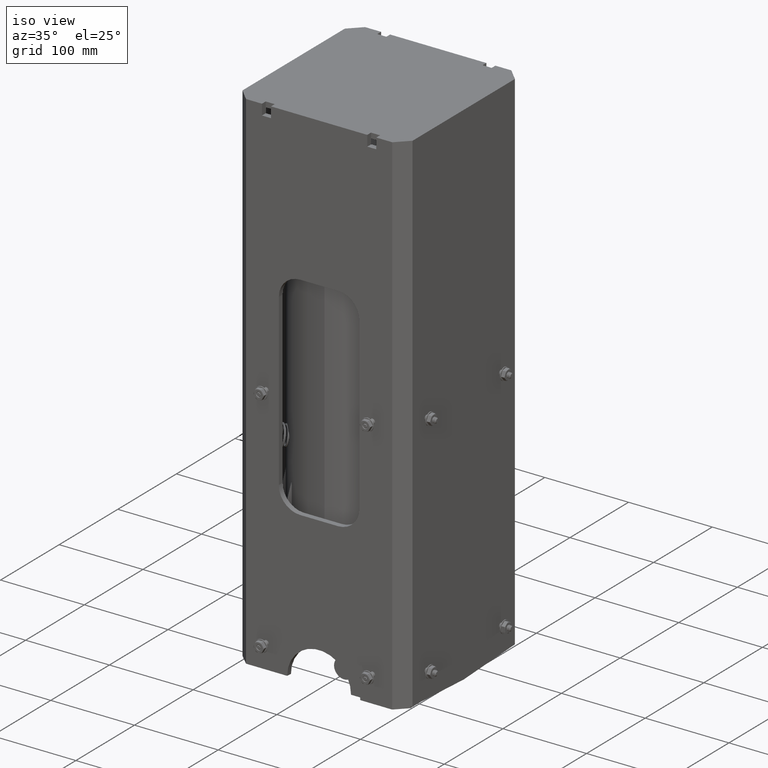
[diagram: clean part render]
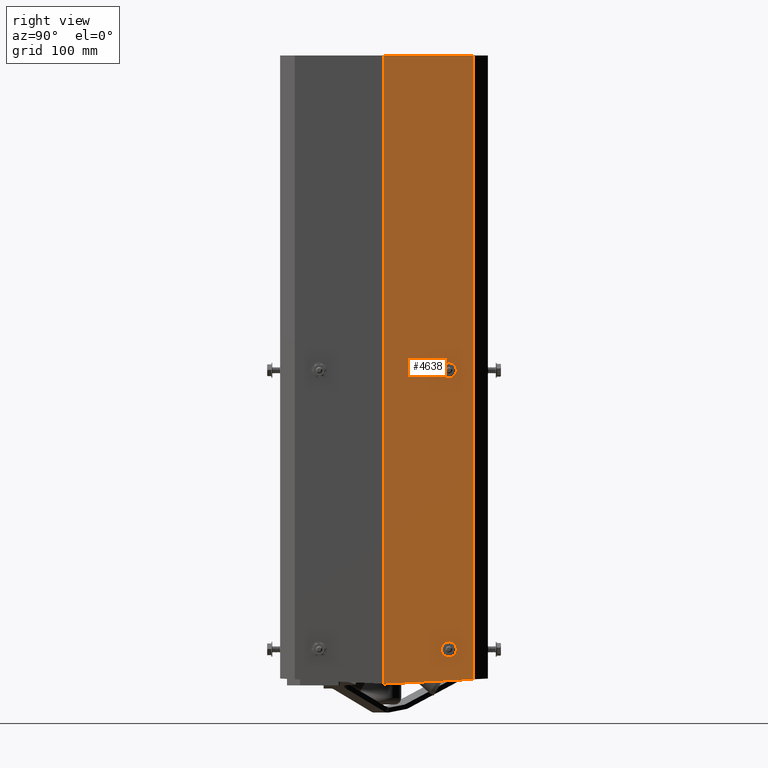
[diagram: tour spotlight — one face highlighted and labeled with its STEP entity id]
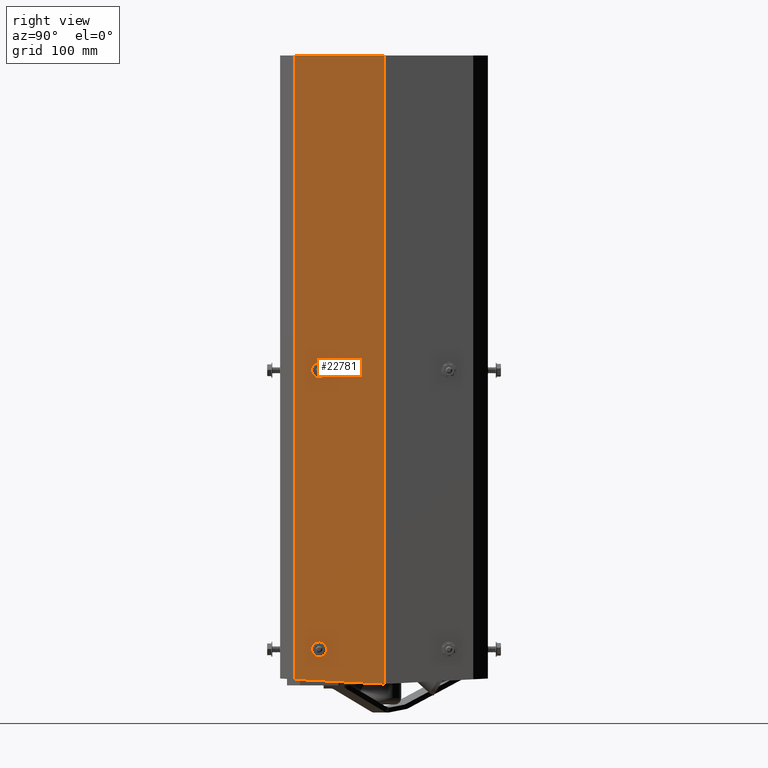
[diagram: tour spotlight — one face highlighted and labeled with its STEP entity id]
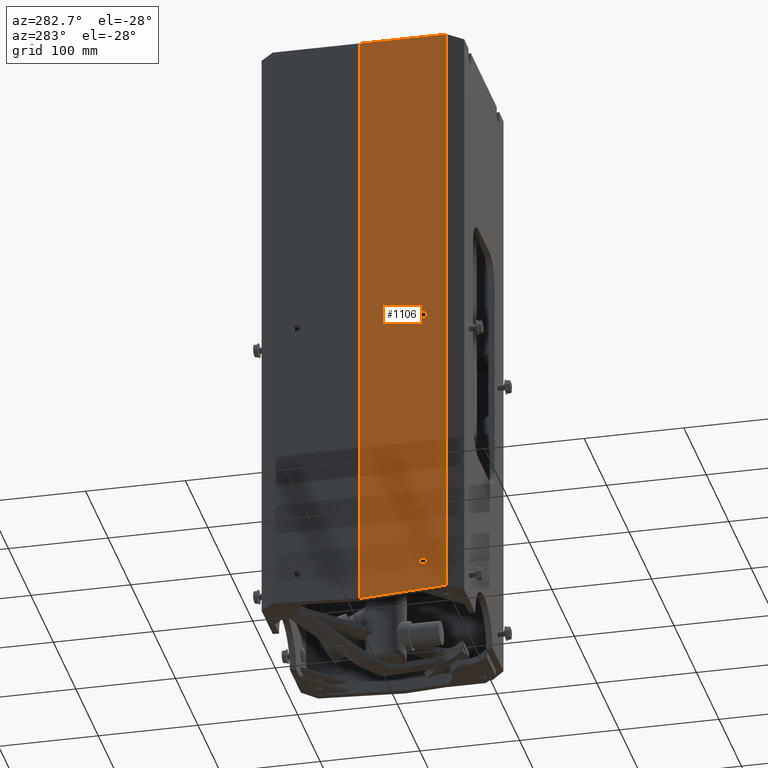
[diagram: tour spotlight — one face highlighted and labeled with its STEP entity id]
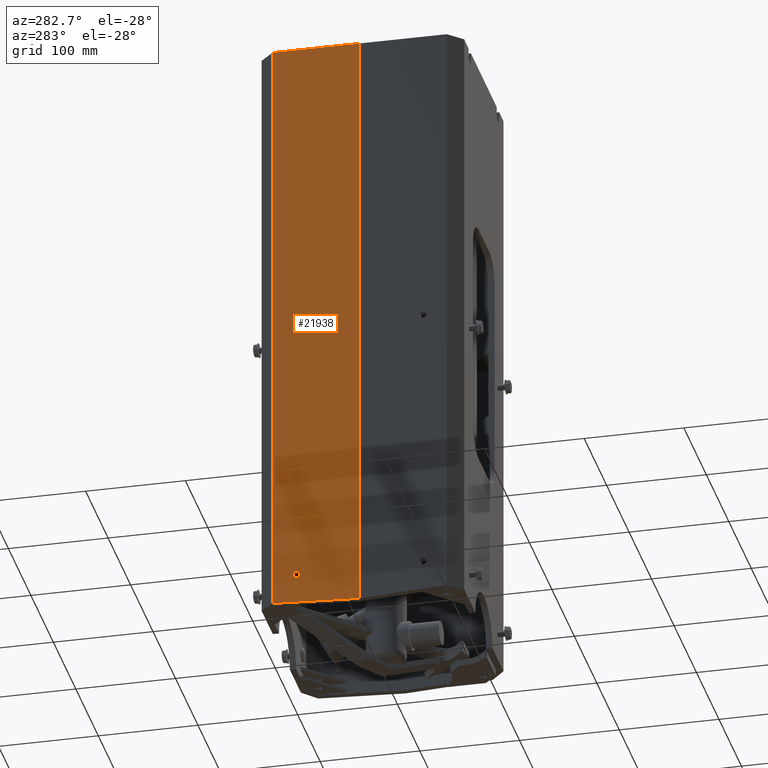
[diagram: tour spotlight — one face highlighted and labeled with its STEP entity id]
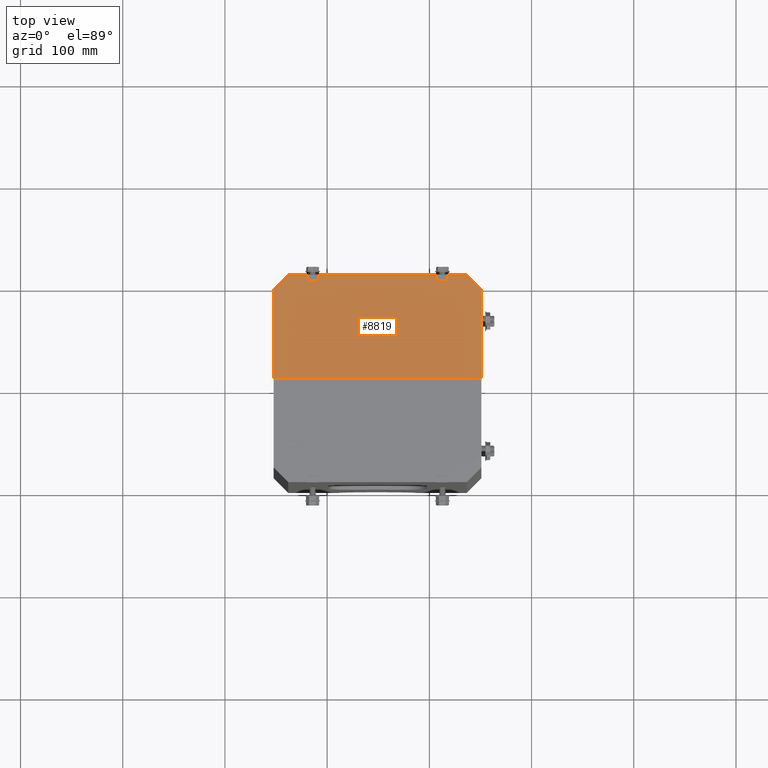
[diagram: tour spotlight — one face highlighted and labeled with its STEP entity id]
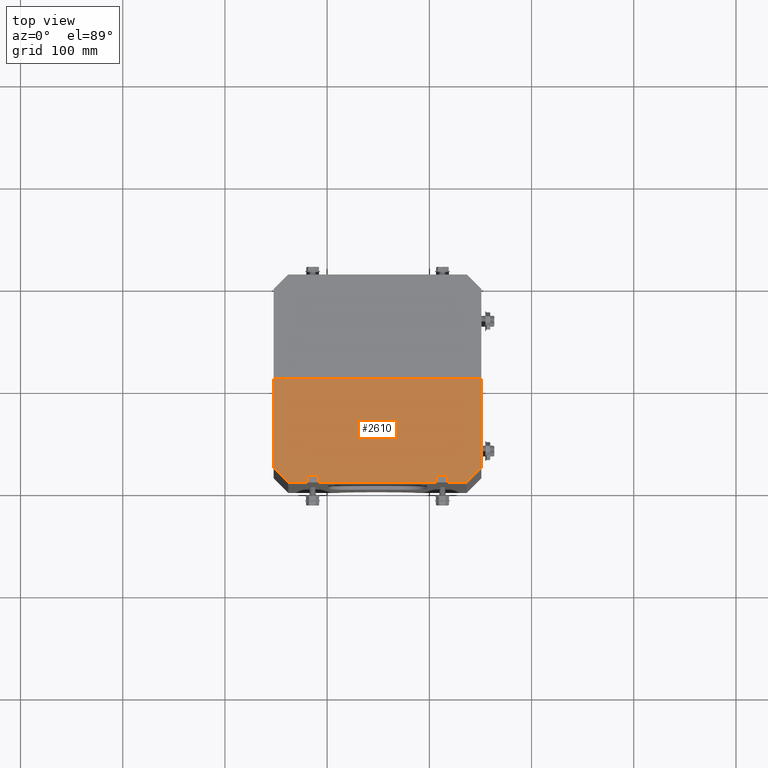
[diagram: tour spotlight — one face highlighted and labeled with its STEP entity id]
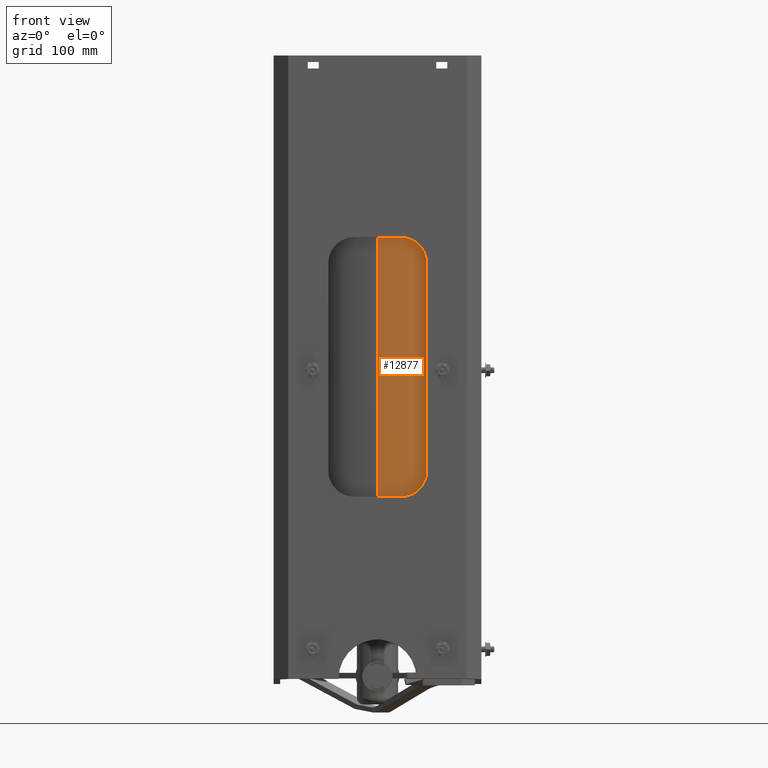
[diagram: tour spotlight — one face highlighted and labeled with its STEP entity id]
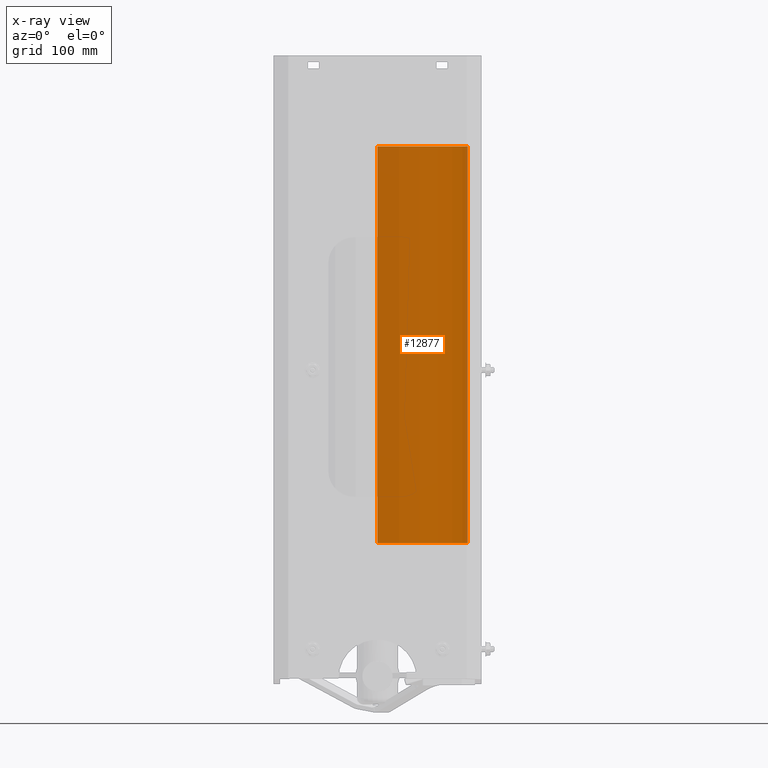
[diagram: x-ray of the same camera — body ghosted, this tour face saturated]
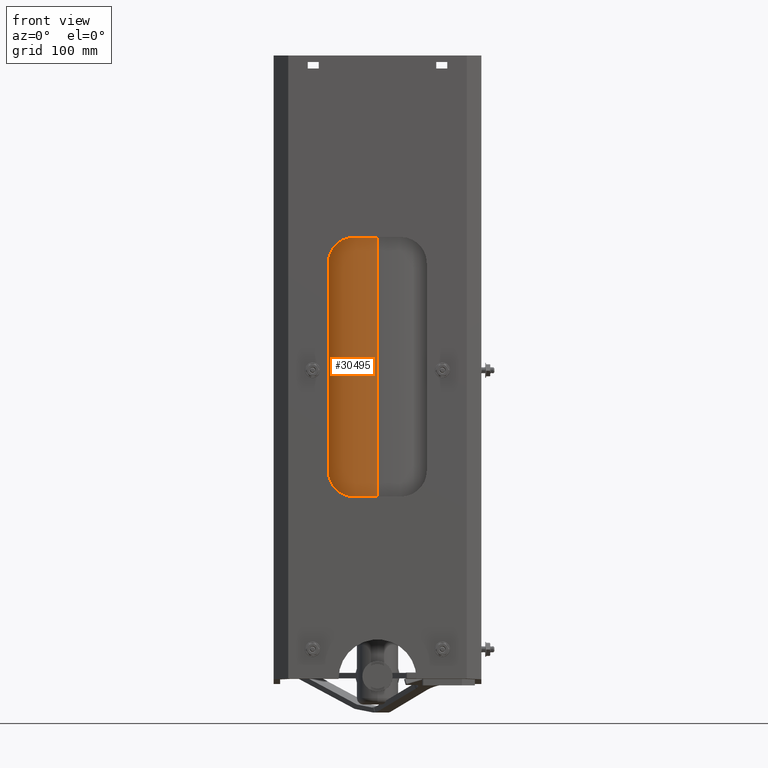
[diagram: tour spotlight — one face highlighted and labeled with its STEP entity id]
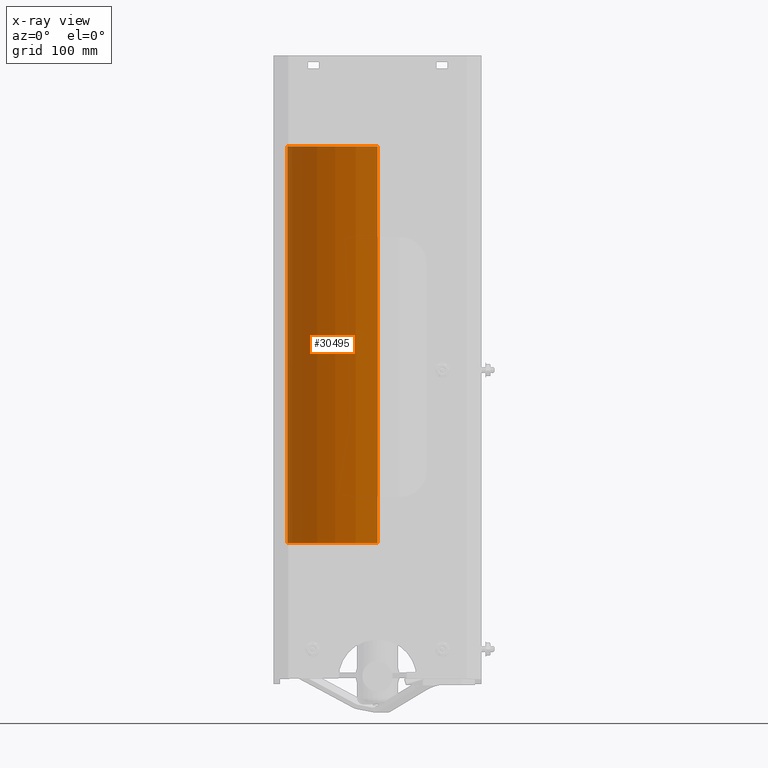
[diagram: x-ray of the same camera — body ghosted, this tour face saturated]
A machine part: a face-by-face anatomy tour. The part has 2538 B-rep faces; the first image is the clean iso view, then the 8 largest visible faces are spotlighted one at a time (largest first), each with its STEP entity span.

Face 1 — right view, entity #4638. In plain terms, the highlighted planar face has unit normal (-1, 0, 0).
Definition (entity closure, byte-faithful):
#284 = EDGE_CURVE ( 'NONE', #6771, #21971, #22871, .T. ) ;
#417 = EDGE_CURVE ( 'NONE', #16886, #15276, #11267, .T. ) ;
#509 = DIRECTION ( 'NONE',  ( 0.0000000000000000000, -1.000000000000000000, 0.0000000000000000000 ) ) ;
#2124 = FACE_BOUND ( 'NONE', #20098, .T. ) ;
#2401 = EDGE_LOOP ( 'NONE', ( #6319, #25370 ) ) ;
#2809 = CARTESIAN_POINT ( 'NONE',  ( 4.000000000000010700, 2.500000000000007100, -10.77000000000000100 ) ) ;
#3240 = VECTOR ( 'NONE', #5950, 39.37007874015748100 ) ;
#3584 = CARTESIAN_POINT ( 'NONE',  ( 4.000000000000010700, 4.000000000000010700, 12.10500000000000000 ) ) ;
#4638 = ADVANCED_FACE ( 'NONE', ( #27505, #2124, #14787 ), #26801, .F. ) ;
#4927 = EDGE_CURVE ( 'NONE', #14602, #11622, #9558, .T. ) ;
#5170 = DIRECTION ( 'NONE',  ( 0.0000000000000000000, -1.000000000000000000, 0.0000000000000000000 ) ) ;
#5950 = DIRECTION ( 'NONE',  ( 3.074968101668468900E-016, 1.000000000000000000, 0.0000000000000000000 ) ) ;
#5956 = ORIENTED_EDGE ( 'NONE', *, *, #16157, .T. ) ;
#6319 = ORIENTED_EDGE ( 'NONE', *, *, #284, .T. ) ;
#6603 = CARTESIAN_POINT ( 'NONE',  ( 4.000000000000010700, 4.000000000000011500, -11.89500000000000000 ) ) ;
#6648 = ORIENTED_EDGE ( 'NONE', *, *, #417, .T. ) ;
#6771 = VERTEX_POINT ( 'NONE', #9075 ) ;
#7491 = CARTESIAN_POINT ( 'NONE',  ( 4.000000000000010700, 3.437500000000007100, 12.10500000000000000 ) ) ;
#7652 = DIRECTION ( 'NONE',  ( 0.0000000000000000000, -0.0000000000000000000, 1.000000000000000000 ) ) ;
#8257 = LINE ( 'NONE', #19558, #20946 ) ;
#9075 = CARTESIAN_POINT ( 'NONE',  ( 4.000000000000010700, 2.367000000000006700, -0.02000000000000033300 ) ) ;
#9558 = LINE ( 'NONE', #3584, #3240 ) ;
#10490 = EDGE_CURVE ( 'NONE', #12113, #18866, #23821, .T. ) ;
#11267 = CIRCLE ( 'NONE', #18347, 0.1329999999999999200 ) ;
#11622 = VERTEX_POINT ( 'NONE', #7491 ) ;
#11767 = CARTESIAN_POINT ( 'NONE',  ( 4.000000000000010700, 2.633000000000007600, -0.02000000000000031600 ) ) ;
#12113 = VERTEX_POINT ( 'NONE', #16227 ) ;
#12474 = DIRECTION ( 'NONE',  ( -1.000000000000000000, 3.074968101668468900E-016, 0.0000000000000000000 ) ) ;
#12806 = AXIS2_PLACEMENT_3D ( 'NONE', #21965, #12474, #29215 ) ;
#13441 = LINE ( 'NONE', #15789, #20541 ) ;
#13576 = EDGE_CURVE ( 'NONE', #12113, #11622, #8257, .T. ) ;
#14602 = VERTEX_POINT ( 'NONE', #27049 ) ;
#14774 = DIRECTION ( 'NONE',  ( -1.000000000000000000, -5.806816095332730200E-016, 0.0000000000000000000 ) ) ;
#14787 = FACE_OUTER_BOUND ( 'NONE', #17813, .T. ) ;
#15276 = VERTEX_POINT ( 'NONE', #24965 ) ;
#15789 = CARTESIAN_POINT ( 'NONE',  ( 4.000000000000008900, 1.775701195881771200E-015, 12.10500000000000000 ) ) ;
#16121 = DIRECTION ( 'NONE',  ( 0.0000000000000000000, -1.000000000000000000, 0.0000000000000000000 ) ) ;
#16157 = EDGE_CURVE ( 'NONE', #15276, #16886, #30646, .T. ) ;
#16227 = CARTESIAN_POINT ( 'NONE',  ( 4.000000000000010700, 3.437500000000008400, -11.92453125000000100 ) ) ;
#16720 = AXIS2_PLACEMENT_3D ( 'NONE', #25138, #23980, #23869 ) ;
#16886 = VERTEX_POINT ( 'NONE', #21608 ) ;
#17210 = ORIENTED_EDGE ( 'NONE', *, *, #22417, .T. ) ;
#17429 = CIRCLE ( 'NONE', #28614, 0.1330000000000004800 ) ;
#17813 = EDGE_LOOP ( 'NONE', ( #25842, #17210, #25155, #18702 ) ) ;
#18347 = AXIS2_PLACEMENT_3D ( 'NONE', #21843, #30478, #16121 ) ;
#18702 = ORIENTED_EDGE ( 'NONE', *, *, #13576, .T. ) ;
#18866 = VERTEX_POINT ( 'NONE', #30660 ) ;
#19486 = DIRECTION ( 'NONE',  ( -1.000000000000000000, -5.806816095332730200E-016, 0.0000000000000000000 ) ) ;
#19558 = CARTESIAN_POINT ( 'NONE',  ( 4.000000000000010700, 3.437500000000008400, 12.10500000000000000 ) ) ;
#20098 = EDGE_LOOP ( 'NONE', ( #6648, #5956 ) ) ;
#20541 = VECTOR ( 'NONE', #25320, 39.37007874015748100 ) ;
#20888 = DIRECTION ( 'NONE',  ( -4.434784616491930900E-016, -0.9986247173150795100, -0.05242779765904163200 ) ) ;
#20946 = VECTOR ( 'NONE', #7652, 39.37007874015748100 ) ;
#21608 = CARTESIAN_POINT ( 'NONE',  ( 4.000000000000010700, 2.367000000000007100, -10.77000000000000100 ) ) ;
#21843 = CARTESIAN_POINT ( 'NONE',  ( 4.000000000000010700, 2.500000000000007100, -10.77000000000000100 ) ) ;
#21965 = CARTESIAN_POINT ( 'NONE',  ( 4.000000000000010700, 4.000000000000010700, 12.10500000000000000 ) ) ;
#21971 = VERTEX_POINT ( 'NONE', #11767 ) ;
#22417 = EDGE_CURVE ( 'NONE', #14602, #18866, #13441, .T. ) ;
#22871 = CIRCLE ( 'NONE', #16720, 0.1330000000000004800 ) ;
#23821 = LINE ( 'NONE', #6603, #30171 ) ;
#23869 = DIRECTION ( 'NONE',  ( 0.0000000000000000000, -1.000000000000000000, 0.0000000000000000000 ) ) ;
#23980 = DIRECTION ( 'NONE',  ( -1.000000000000000000, -5.806816095332730200E-016, 0.0000000000000000000 ) ) ;
#24965 = CARTESIAN_POINT ( 'NONE',  ( 4.000000000000010700, 2.633000000000007100, -10.77000000000000100 ) ) ;
#24979 = AXIS2_PLACEMENT_3D ( 'NONE', #2809, #19486, #5170 ) ;
#25138 = CARTESIAN_POINT ( 'NONE',  ( 4.000000000000010700, 2.500000000000007100, -0.02000000000000033300 ) ) ;
#25155 = ORIENTED_EDGE ( 'NONE', *, *, #10490, .F. ) ;
#25320 = DIRECTION ( 'NONE',  ( 0.0000000000000000000, 0.0000000000000000000, -1.000000000000000000 ) ) ;
#25370 = ORIENTED_EDGE ( 'NONE', *, *, #26281, .T. ) ;
#25842 = ORIENTED_EDGE ( 'NONE', *, *, #4927, .F. ) ;
#26281 = EDGE_CURVE ( 'NONE', #21971, #6771, #17429, .T. ) ;
#26801 = PLANE ( 'NONE',  #12806 ) ;
#27049 = CARTESIAN_POINT ( 'NONE',  ( 4.000000000000008900, 1.775701195881771200E-015, 12.10500000000000000 ) ) ;
#27505 = FACE_BOUND ( 'NONE', #2401, .T. ) ;
#28614 = AXIS2_PLACEMENT_3D ( 'NONE', #29112, #14774, #509 ) ;
#29112 = CARTESIAN_POINT ( 'NONE',  ( 4.000000000000010700, 2.500000000000007100, -0.02000000000000033300 ) ) ;
#29215 = DIRECTION ( 'NONE',  ( -3.074968101668468900E-016, -1.000000000000000000, 0.0000000000000000000 ) ) ;
#30171 = VECTOR ( 'NONE', #20888, 39.37007874015748100 ) ;
#30478 = DIRECTION ( 'NONE',  ( -1.000000000000000000, -5.806816095332730200E-016, 0.0000000000000000000 ) ) ;
#30646 = CIRCLE ( 'NONE', #24979, 0.1329999999999999200 ) ;
#30660 = CARTESIAN_POINT ( 'NONE',  ( 4.000000000000008900, 1.775701195881771200E-015, -12.10500000000000000 ) ) ;

Face 2 — right view, entity #22781. In plain terms, the highlighted planar face has unit normal (-1, 0, 0).
Definition (entity closure, byte-faithful):
#262 = EDGE_CURVE ( 'NONE', #11685, #11226, #20627, .T. ) ;
#516 = CARTESIAN_POINT ( 'NONE',  ( 4.000000000000011500, -2.633000000000002200, -0.02000000000000033300 ) ) ;
#1069 = CARTESIAN_POINT ( 'NONE',  ( 4.000000000000011500, -2.633000000000001800, -10.77000000000000100 ) ) ;
#2185 = EDGE_CURVE ( 'NONE', #3603, #16220, #23552, .T. ) ;
#3455 = ORIENTED_EDGE ( 'NONE', *, *, #10946, .T. ) ;
#3603 = VERTEX_POINT ( 'NONE', #15439 ) ;
#4120 = DIRECTION ( 'NONE',  ( 0.0000000000000000000, 0.0000000000000000000, -1.000000000000000000 ) ) ;
#4570 = EDGE_CURVE ( 'NONE', #17254, #15961, #17017, .T. ) ;
#5070 = CARTESIAN_POINT ( 'NONE',  ( 4.000000000000008900, 1.775701195881771200E-015, 12.10500000000000000 ) ) ;
#5748 = DIRECTION ( 'NONE',  ( 4.434784616491930900E-016, 0.9986247173150795100, -0.05242779765904163200 ) ) ;
#5961 = FACE_BOUND ( 'NONE', #25561, .T. ) ;
#6181 = CARTESIAN_POINT ( 'NONE',  ( 4.000000000000011500, -2.500000000000001800, -10.77000000000000100 ) ) ;
#6450 = CARTESIAN_POINT ( 'NONE',  ( 4.000000000000010700, 4.000000000000010700, 12.10500000000000000 ) ) ;
#7329 = DIRECTION ( 'NONE',  ( -3.074968101668468900E-016, -1.000000000000000000, 0.0000000000000000000 ) ) ;
#7468 = DIRECTION ( 'NONE',  ( 0.0000000000000000000, 0.0000000000000000000, -1.000000000000000000 ) ) ;
#7469 = CIRCLE ( 'NONE', #13867, 0.1329999999999999200 ) ;
#7657 = CARTESIAN_POINT ( 'NONE',  ( 4.000000000000007100, -3.437500000000001800, 12.10500000000000000 ) ) ;
#7900 = CARTESIAN_POINT ( 'NONE',  ( 4.000000000000011500, -2.500000000000001800, -10.77000000000000100 ) ) ;
#8027 = EDGE_CURVE ( 'NONE', #17180, #17170, #7469, .T. ) ;
#8210 = ORIENTED_EDGE ( 'NONE', *, *, #9406, .T. ) ;
#8575 = DIRECTION ( 'NONE',  ( 0.0000000000000000000, -1.000000000000000000, 0.0000000000000000000 ) ) ;
#9406 = EDGE_CURVE ( 'NONE', #17170, #17180, #13001, .T. ) ;
#10191 = LINE ( 'NONE', #6450, #17264 ) ;
#10300 = DIRECTION ( 'NONE',  ( 0.0000000000000000000, -1.000000000000000000, 0.0000000000000000000 ) ) ;
#10834 = CARTESIAN_POINT ( 'NONE',  ( 4.000000000000008900, 1.775701195881771200E-015, 12.10500000000000000 ) ) ;
#10946 = EDGE_CURVE ( 'NONE', #16220, #15961, #27525, .T. ) ;
#11143 = CIRCLE ( 'NONE', #27573, 0.1330000000000004800 ) ;
#11182 = CARTESIAN_POINT ( 'NONE',  ( 4.000000000000011500, -2.500000000000001800, -0.02000000000000033300 ) ) ;
#11226 = VERTEX_POINT ( 'NONE', #16053 ) ;
#11667 = AXIS2_PLACEMENT_3D ( 'NONE', #7900, #24620, #10300 ) ;
#11685 = VERTEX_POINT ( 'NONE', #516 ) ;
#13001 = CIRCLE ( 'NONE', #11667, 0.1329999999999999200 ) ;
#13535 = AXIS2_PLACEMENT_3D ( 'NONE', #26169, #25865, #25757 ) ;
#13602 = DIRECTION ( 'NONE',  ( 0.0000000000000000000, -1.000000000000000000, 0.0000000000000000000 ) ) ;
#13867 = AXIS2_PLACEMENT_3D ( 'NONE', #6181, #22886, #8575 ) ;
#13886 = ORIENTED_EDGE ( 'NONE', *, *, #16567, .T. ) ;
#14229 = EDGE_LOOP ( 'NONE', ( #19312, #13886 ) ) ;
#15221 = CARTESIAN_POINT ( 'NONE',  ( 4.000000000000006200, -4.000000000000008000, -11.89500000000000000 ) ) ;
#15439 = CARTESIAN_POINT ( 'NONE',  ( 4.000000000000008000, -3.437499999999999600, 12.10500000000000000 ) ) ;
#15622 = CARTESIAN_POINT ( 'NONE',  ( 4.000000000000008900, 1.775701195881771200E-015, -12.10500000000000000 ) ) ;
#15961 = VERTEX_POINT ( 'NONE', #15622 ) ;
#16053 = CARTESIAN_POINT ( 'NONE',  ( 4.000000000000011500, -2.367000000000001300, -0.02000000000000031600 ) ) ;
#16220 = VERTEX_POINT ( 'NONE', #22176 ) ;
#16290 = VECTOR ( 'NONE', #5748, 39.37007874015748100 ) ;
#16567 = EDGE_CURVE ( 'NONE', #11226, #11685, #11143, .T. ) ;
#17017 = LINE ( 'NONE', #5070, #22631 ) ;
#17167 = VECTOR ( 'NONE', #4120, 39.37007874015748100 ) ;
#17170 = VERTEX_POINT ( 'NONE', #22548 ) ;
#17180 = VERTEX_POINT ( 'NONE', #1069 ) ;
#17254 = VERTEX_POINT ( 'NONE', #10834 ) ;
#17264 = VECTOR ( 'NONE', #23159, 39.37007874015748100 ) ;
#17904 = FACE_OUTER_BOUND ( 'NONE', #27998, .T. ) ;
#18790 = ORIENTED_EDGE ( 'NONE', *, *, #2185, .T. ) ;
#19243 = PLANE ( 'NONE',  #28729 ) ;
#19312 = ORIENTED_EDGE ( 'NONE', *, *, #262, .T. ) ;
#19572 = ORIENTED_EDGE ( 'NONE', *, *, #4570, .F. ) ;
#20627 = CIRCLE ( 'NONE', #13535, 0.1330000000000004800 ) ;
#20745 = EDGE_CURVE ( 'NONE', #3603, #17254, #10191, .T. ) ;
#21614 = DIRECTION ( 'NONE',  ( -1.000000000000000000, 3.074968101668468900E-016, 0.0000000000000000000 ) ) ;
#22176 = CARTESIAN_POINT ( 'NONE',  ( 4.000000000000005300, -3.437500000000004400, -11.92453125000000100 ) ) ;
#22548 = CARTESIAN_POINT ( 'NONE',  ( 4.000000000000011500, -2.367000000000002200, -10.77000000000000100 ) ) ;
#22631 = VECTOR ( 'NONE', #7468, 39.37007874015748100 ) ;
#22781 = ADVANCED_FACE ( 'NONE', ( #5961, #24289, #17904 ), #19243, .F. ) ;
#22886 = DIRECTION ( 'NONE',  ( -1.000000000000000000, -5.806816095332730200E-016, 0.0000000000000000000 ) ) ;
#23159 = DIRECTION ( 'NONE',  ( 3.074968101668468900E-016, 1.000000000000000000, 0.0000000000000000000 ) ) ;
#23552 = LINE ( 'NONE', #7657, #17167 ) ;
#23845 = ORIENTED_EDGE ( 'NONE', *, *, #20745, .F. ) ;
#24289 = FACE_BOUND ( 'NONE', #14229, .T. ) ;
#24620 = DIRECTION ( 'NONE',  ( -1.000000000000000000, -5.806816095332730200E-016, 0.0000000000000000000 ) ) ;
#25561 = EDGE_LOOP ( 'NONE', ( #25715, #8210 ) ) ;
#25715 = ORIENTED_EDGE ( 'NONE', *, *, #8027, .T. ) ;
#25757 = DIRECTION ( 'NONE',  ( 0.0000000000000000000, -1.000000000000000000, 0.0000000000000000000 ) ) ;
#25865 = DIRECTION ( 'NONE',  ( -1.000000000000000000, -5.806816095332730200E-016, 0.0000000000000000000 ) ) ;
#26169 = CARTESIAN_POINT ( 'NONE',  ( 4.000000000000011500, -2.500000000000001800, -0.02000000000000033300 ) ) ;
#27525 = LINE ( 'NONE', #15221, #16290 ) ;
#27573 = AXIS2_PLACEMENT_3D ( 'NONE', #11182, #27907, #13602 ) ;
#27907 = DIRECTION ( 'NONE',  ( -1.000000000000000000, -5.806816095332730200E-016, 0.0000000000000000000 ) ) ;
#27998 = EDGE_LOOP ( 'NONE', ( #19572, #23845, #18790, #3455 ) ) ;
#28729 = AXIS2_PLACEMENT_3D ( 'NONE', #28752, #21614, #7329 ) ;
#28752 = CARTESIAN_POINT ( 'NONE',  ( 4.000000000000010700, 4.000000000000010700, 12.10500000000000000 ) ) ;

Face 3 — auxiliary view, entity #1106. In plain terms, the highlighted planar face has unit normal (1, -0, 0).
Definition (entity closure, byte-faithful):
#74 = AXIS2_PLACEMENT_3D ( 'NONE', #11642, #28357, #14051 ) ;
#92 = CARTESIAN_POINT ( 'NONE',  ( -4.000000000000006200, 4.000000000000006200, 12.10500000000000000 ) ) ;
#205 = EDGE_CURVE ( 'NONE', #12369, #11992, #22123, .T. ) ;
#324 = VERTEX_POINT ( 'NONE', #20927 ) ;
#441 = DIRECTION ( 'NONE',  ( -1.000000000000000000, -5.806816095332730200E-016, 0.0000000000000000000 ) ) ;
#503 = CIRCLE ( 'NONE', #74, 0.1329999999999999200 ) ;
#686 = VERTEX_POINT ( 'NONE', #21135 ) ;
#1106 = ADVANCED_FACE ( 'NONE', ( #16838, #30346, #10503 ), #7278, .F. ) ;
#1108 = ORIENTED_EDGE ( 'NONE', *, *, #205, .F. ) ;
#1591 = LINE ( 'NONE', #12855, #14275 ) ;
#1886 = CIRCLE ( 'NONE', #12706, 0.1330000000000004800 ) ;
#4248 = ORIENTED_EDGE ( 'NONE', *, *, #8504, .F. ) ;
#4463 = CARTESIAN_POINT ( 'NONE',  ( -4.000000000000008900, -2.633000000000007600, -0.02000000000000033300 ) ) ;
#4758 = VERTEX_POINT ( 'NONE', #7885 ) ;
#6640 = CARTESIAN_POINT ( 'NONE',  ( -4.000000000000006200, 4.000000000000006200, 12.10500000000000000 ) ) ;
#7138 = CARTESIAN_POINT ( 'NONE',  ( -4.000000000000008900, -2.500000000000007100, -0.02000000000000033300 ) ) ;
#7258 = DIRECTION ( 'NONE',  ( -3.074968101668468900E-016, -1.000000000000000000, 0.0000000000000000000 ) ) ;
#7278 = PLANE ( 'NONE',  #20341 ) ;
#7319 = EDGE_CURVE ( 'NONE', #4758, #686, #9840, .T. ) ;
#7452 = EDGE_CURVE ( 'NONE', #324, #17771, #503, .T. ) ;
#7885 = CARTESIAN_POINT ( 'NONE',  ( -4.000000000000010700, -3.437500000000004000, -11.92453125000000100 ) ) ;
#8504 = EDGE_CURVE ( 'NONE', #17771, #324, #15267, .T. ) ;
#8672 = CARTESIAN_POINT ( 'NONE',  ( -4.000000000000008900, -2.500000000000007100, -0.02000000000000033300 ) ) ;
#9537 = DIRECTION ( 'NONE',  ( 0.0000000000000000000, -1.000000000000000000, 0.0000000000000000000 ) ) ;
#9840 = LINE ( 'NONE', #13518, #21765 ) ;
#9875 = ORIENTED_EDGE ( 'NONE', *, *, #7319, .F. ) ;
#10503 = FACE_OUTER_BOUND ( 'NONE', #21350, .T. ) ;
#11035 = DIRECTION ( 'NONE',  ( 0.0000000000000000000, -1.000000000000000000, 0.0000000000000000000 ) ) ;
#11091 = CARTESIAN_POINT ( 'NONE',  ( -4.000000000000010700, -3.437500000000002700, 12.10500000000000000 ) ) ;
#11642 = CARTESIAN_POINT ( 'NONE',  ( -4.000000000000008900, -2.500000000000007100, -10.77000000000000100 ) ) ;
#11662 = AXIS2_PLACEMENT_3D ( 'NONE', #8672, #25385, #11035 ) ;
#11992 = VERTEX_POINT ( 'NONE', #11091 ) ;
#12369 = VERTEX_POINT ( 'NONE', #28877 ) ;
#12588 = EDGE_CURVE ( 'NONE', #4758, #11992, #1591, .T. ) ;
#12706 = AXIS2_PLACEMENT_3D ( 'NONE', #7138, #23852, #9537 ) ;
#12855 = CARTESIAN_POINT ( 'NONE',  ( -4.000000000000010700, -3.437500000000004000, 12.10500000000000000 ) ) ;
#13227 = CARTESIAN_POINT ( 'NONE',  ( -4.000000000000008900, -2.367000000000006700, -0.02000000000000031600 ) ) ;
#13496 = ORIENTED_EDGE ( 'NONE', *, *, #19493, .F. ) ;
#13518 = CARTESIAN_POINT ( 'NONE',  ( -4.000000000000010700, -4.000000000000011500, -11.89500000000000000 ) ) ;
#14051 = DIRECTION ( 'NONE',  ( 0.0000000000000000000, -1.000000000000000000, 0.0000000000000000000 ) ) ;
#14275 = VECTOR ( 'NONE', #27185, 39.37007874015748100 ) ;
#14613 = EDGE_CURVE ( 'NONE', #686, #12369, #15342, .T. ) ;
#14715 = CARTESIAN_POINT ( 'NONE',  ( -4.000000000000008900, -2.500000000000007100, -10.77000000000000100 ) ) ;
#15104 = CARTESIAN_POINT ( 'NONE',  ( -4.000000000000008900, -1.775701195881771200E-015, 12.10500000000000000 ) ) ;
#15267 = CIRCLE ( 'NONE', #29301, 0.1329999999999999200 ) ;
#15342 = LINE ( 'NONE', #15104, #27335 ) ;
#15755 = VECTOR ( 'NONE', #7258, 39.37007874015748100 ) ;
#16838 = FACE_BOUND ( 'NONE', #25763, .T. ) ;
#16858 = DIRECTION ( 'NONE',  ( 1.000000000000000000, -3.074968101668468900E-016, 0.0000000000000000000 ) ) ;
#17105 = DIRECTION ( 'NONE',  ( 0.0000000000000000000, -1.000000000000000000, 0.0000000000000000000 ) ) ;
#17143 = EDGE_LOOP ( 'NONE', ( #13496, #18478 ) ) ;
#17771 = VERTEX_POINT ( 'NONE', #26514 ) ;
#18175 = VERTEX_POINT ( 'NONE', #4463 ) ;
#18478 = ORIENTED_EDGE ( 'NONE', *, *, #22720, .F. ) ;
#19493 = EDGE_CURVE ( 'NONE', #18175, #20653, #28566, .T. ) ;
#20341 = AXIS2_PLACEMENT_3D ( 'NONE', #92, #16858, #21659 ) ;
#20416 = ORIENTED_EDGE ( 'NONE', *, *, #12588, .T. ) ;
#20653 = VERTEX_POINT ( 'NONE', #13227 ) ;
#20927 = CARTESIAN_POINT ( 'NONE',  ( -4.000000000000008900, -2.633000000000007100, -10.77000000000000100 ) ) ;
#21135 = CARTESIAN_POINT ( 'NONE',  ( -4.000000000000008900, -1.775701195881771200E-015, -12.10500000000000000 ) ) ;
#21203 = ORIENTED_EDGE ( 'NONE', *, *, #14613, .F. ) ;
#21350 = EDGE_LOOP ( 'NONE', ( #21203, #9875, #20416, #1108 ) ) ;
#21659 = DIRECTION ( 'NONE',  ( 3.074968101668468900E-016, 1.000000000000000000, 0.0000000000000000000 ) ) ;
#21765 = VECTOR ( 'NONE', #30260, 39.37007874015748100 ) ;
#22123 = LINE ( 'NONE', #6640, #15755 ) ;
#22720 = EDGE_CURVE ( 'NONE', #20653, #18175, #1886, .T. ) ;
#23852 = DIRECTION ( 'NONE',  ( -1.000000000000000000, -5.806816095332730200E-016, 0.0000000000000000000 ) ) ;
#25385 = DIRECTION ( 'NONE',  ( -1.000000000000000000, -5.806816095332730200E-016, 0.0000000000000000000 ) ) ;
#25763 = EDGE_LOOP ( 'NONE', ( #28041, #4248 ) ) ;
#26514 = CARTESIAN_POINT ( 'NONE',  ( -4.000000000000008900, -2.367000000000007500, -10.77000000000000100 ) ) ;
#27185 = DIRECTION ( 'NONE',  ( 0.0000000000000000000, -0.0000000000000000000, 1.000000000000000000 ) ) ;
#27335 = VECTOR ( 'NONE', #29434, 39.37007874015748100 ) ;
#28041 = ORIENTED_EDGE ( 'NONE', *, *, #7452, .F. ) ;
#28357 = DIRECTION ( 'NONE',  ( -1.000000000000000000, -5.806816095332730200E-016, 0.0000000000000000000 ) ) ;
#28566 = CIRCLE ( 'NONE', #11662, 0.1330000000000004800 ) ;
#28877 = CARTESIAN_POINT ( 'NONE',  ( -4.000000000000008900, -1.775701195881771200E-015, 12.10500000000000000 ) ) ;
#29301 = AXIS2_PLACEMENT_3D ( 'NONE', #14715, #441, #17105 ) ;
#29434 = DIRECTION ( 'NONE',  ( 0.0000000000000000000, -0.0000000000000000000, 1.000000000000000000 ) ) ;
#30260 = DIRECTION ( 'NONE',  ( 4.434784616491930900E-016, 0.9986247173150795100, -0.05242779765904163200 ) ) ;
#30346 = FACE_BOUND ( 'NONE', #17143, .T. ) ;

Face 4 — auxiliary view, entity #21938. In plain terms, the highlighted planar face has unit normal (1, -0, 0).
Definition (entity closure, byte-faithful):
#330 = AXIS2_PLACEMENT_3D ( 'NONE', #4101, #20770, #6490 ) ;
#844 = DIRECTION ( 'NONE',  ( -1.000000000000000000, -5.806816095332730200E-016, 0.0000000000000000000 ) ) ;
#1324 = CARTESIAN_POINT ( 'NONE',  ( -4.000000000000006200, 3.437500000000002200, -11.92453125000000100 ) ) ;
#2481 = LINE ( 'NONE', #11538, #20736 ) ;
#2708 = FACE_BOUND ( 'NONE', #27331, .T. ) ;
#3450 = FACE_BOUND ( 'NONE', #9673, .T. ) ;
#3499 = DIRECTION ( 'NONE',  ( -3.074968101668468900E-016, -1.000000000000000000, 0.0000000000000000000 ) ) ;
#3996 = EDGE_CURVE ( 'NONE', #21638, #14153, #18161, .T. ) ;
#4101 = CARTESIAN_POINT ( 'NONE',  ( -4.000000000000008900, 2.500000000000001800, -0.02000000000000033300 ) ) ;
#4443 = VERTEX_POINT ( 'NONE', #4876 ) ;
#4876 = CARTESIAN_POINT ( 'NONE',  ( -4.000000000000008900, -1.775701195881771200E-015, 12.10500000000000000 ) ) ;
#5060 = CARTESIAN_POINT ( 'NONE',  ( -4.000000000000008900, 2.633000000000001800, -10.77000000000000100 ) ) ;
#5072 = VECTOR ( 'NONE', #3499, 39.37007874015748100 ) ;
#5293 = CARTESIAN_POINT ( 'NONE',  ( -4.000000000000008900, 2.500000000000001800, -10.77000000000000100 ) ) ;
#5441 = ORIENTED_EDGE ( 'NONE', *, *, #26298, .F. ) ;
#5819 = LINE ( 'NONE', #5859, #5072 ) ;
#5821 = EDGE_CURVE ( 'NONE', #17093, #17430, #23343, .T. ) ;
#5859 = CARTESIAN_POINT ( 'NONE',  ( -4.000000000000006200, 4.000000000000006200, 12.10500000000000000 ) ) ;
#6490 = DIRECTION ( 'NONE',  ( 0.0000000000000000000, -1.000000000000000000, 0.0000000000000000000 ) ) ;
#6959 = CARTESIAN_POINT ( 'NONE',  ( -4.000000000000006200, 3.437500000000004000, 12.10500000000000000 ) ) ;
#7033 = FACE_OUTER_BOUND ( 'NONE', #28055, .T. ) ;
#7076 = CARTESIAN_POINT ( 'NONE',  ( -4.000000000000006200, 4.000000000000008000, -11.89500000000000000 ) ) ;
#7571 = ORIENTED_EDGE ( 'NONE', *, *, #23189, .F. ) ;
#7694 = DIRECTION ( 'NONE',  ( 0.0000000000000000000, -1.000000000000000000, 0.0000000000000000000 ) ) ;
#8519 = ORIENTED_EDGE ( 'NONE', *, *, #19784, .T. ) ;
#8841 = ORIENTED_EDGE ( 'NONE', *, *, #5821, .F. ) ;
#8868 = CARTESIAN_POINT ( 'NONE',  ( -4.000000000000008900, 2.633000000000002200, -0.02000000000000031600 ) ) ;
#9160 = DIRECTION ( 'NONE',  ( 0.0000000000000000000, 0.0000000000000000000, -1.000000000000000000 ) ) ;
#9371 = DIRECTION ( 'NONE',  ( 1.000000000000000000, -3.074968101668468900E-016, 0.0000000000000000000 ) ) ;
#9601 = VERTEX_POINT ( 'NONE', #1324 ) ;
#9673 = EDGE_LOOP ( 'NONE', ( #5441, #17812 ) ) ;
#9860 = VECTOR ( 'NONE', #26209, 39.37007874015748100 ) ;
#9892 = DIRECTION ( 'NONE',  ( -1.000000000000000000, -5.806816095332730200E-016, 0.0000000000000000000 ) ) ;
#11230 = DIRECTION ( 'NONE',  ( 0.0000000000000000000, -0.0000000000000000000, 1.000000000000000000 ) ) ;
#11538 = CARTESIAN_POINT ( 'NONE',  ( -4.000000000000006200, 3.437500000000001800, 12.10500000000000000 ) ) ;
#14153 = VERTEX_POINT ( 'NONE', #25497 ) ;
#15106 = CARTESIAN_POINT ( 'NONE',  ( -4.000000000000008900, 2.500000000000001800, -10.77000000000000100 ) ) ;
#15475 = AXIS2_PLACEMENT_3D ( 'NONE', #23685, #9371, #26077 ) ;
#16934 = LINE ( 'NONE', #7076, #9860 ) ;
#17093 = VERTEX_POINT ( 'NONE', #22343 ) ;
#17430 = VERTEX_POINT ( 'NONE', #8868 ) ;
#17504 = DIRECTION ( 'NONE',  ( 0.0000000000000000000, -1.000000000000000000, 0.0000000000000000000 ) ) ;
#17812 = ORIENTED_EDGE ( 'NONE', *, *, #3996, .F. ) ;
#18141 = EDGE_CURVE ( 'NONE', #21929, #9601, #2481, .T. ) ;
#18161 = CIRCLE ( 'NONE', #26829, 0.1329999999999999200 ) ;
#19784 = EDGE_CURVE ( 'NONE', #9601, #28768, #16934, .T. ) ;
#20529 = ORIENTED_EDGE ( 'NONE', *, *, #18141, .T. ) ;
#20625 = AXIS2_PLACEMENT_3D ( 'NONE', #24203, #9892, #26612 ) ;
#20736 = VECTOR ( 'NONE', #9160, 39.37007874015748100 ) ;
#20758 = EDGE_CURVE ( 'NONE', #28768, #4443, #29268, .T. ) ;
#20770 = DIRECTION ( 'NONE',  ( -1.000000000000000000, -5.806816095332730200E-016, 0.0000000000000000000 ) ) ;
#20922 = CARTESIAN_POINT ( 'NONE',  ( -4.000000000000008900, -1.775701195881771200E-015, -12.10500000000000000 ) ) ;
#21617 = ORIENTED_EDGE ( 'NONE', *, *, #20758, .T. ) ;
#21638 = VERTEX_POINT ( 'NONE', #5060 ) ;
#21929 = VERTEX_POINT ( 'NONE', #6959 ) ;
#21938 = ADVANCED_FACE ( 'NONE', ( #2708, #3450, #7033 ), #23574, .F. ) ;
#21978 = DIRECTION ( 'NONE',  ( -1.000000000000000000, -5.806816095332730200E-016, 0.0000000000000000000 ) ) ;
#22130 = VECTOR ( 'NONE', #11230, 39.37007874015748100 ) ;
#22343 = CARTESIAN_POINT ( 'NONE',  ( -4.000000000000008900, 2.367000000000001300, -0.02000000000000033300 ) ) ;
#23037 = CIRCLE ( 'NONE', #30208, 0.1329999999999999200 ) ;
#23189 = EDGE_CURVE ( 'NONE', #17430, #17093, #23568, .T. ) ;
#23343 = CIRCLE ( 'NONE', #20625, 0.1330000000000004800 ) ;
#23568 = CIRCLE ( 'NONE', #330, 0.1330000000000004800 ) ;
#23574 = PLANE ( 'NONE',  #15475 ) ;
#23685 = CARTESIAN_POINT ( 'NONE',  ( -4.000000000000006200, 4.000000000000006200, 12.10500000000000000 ) ) ;
#24203 = CARTESIAN_POINT ( 'NONE',  ( -4.000000000000008900, 2.500000000000001800, -0.02000000000000033300 ) ) ;
#25497 = CARTESIAN_POINT ( 'NONE',  ( -4.000000000000008900, 2.367000000000001800, -10.77000000000000100 ) ) ;
#26077 = DIRECTION ( 'NONE',  ( 3.074968101668468900E-016, 1.000000000000000000, 0.0000000000000000000 ) ) ;
#26209 = DIRECTION ( 'NONE',  ( -4.434784616491930900E-016, -0.9986247173150795100, -0.05242779765904163200 ) ) ;
#26298 = EDGE_CURVE ( 'NONE', #14153, #21638, #23037, .T. ) ;
#26612 = DIRECTION ( 'NONE',  ( 0.0000000000000000000, -1.000000000000000000, 0.0000000000000000000 ) ) ;
#26829 = AXIS2_PLACEMENT_3D ( 'NONE', #15106, #844, #17504 ) ;
#27214 = EDGE_CURVE ( 'NONE', #21929, #4443, #5819, .T. ) ;
#27331 = EDGE_LOOP ( 'NONE', ( #8841, #7571 ) ) ;
#28055 = EDGE_LOOP ( 'NONE', ( #8519, #21617, #28766, #20529 ) ) ;
#28766 = ORIENTED_EDGE ( 'NONE', *, *, #27214, .F. ) ;
#28768 = VERTEX_POINT ( 'NONE', #20922 ) ;
#29268 = LINE ( 'NONE', #30283, #22130 ) ;
#30208 = AXIS2_PLACEMENT_3D ( 'NONE', #5293, #21978, #7694 ) ;
#30283 = CARTESIAN_POINT ( 'NONE',  ( -4.000000000000008900, -1.775701195881771200E-015, 12.10500000000000000 ) ) ;

Face 5 — top view, entity #8819. In plain terms, the highlighted planar face has unit normal (0, 0, 1).
Definition (entity closure, byte-faithful):
#820 = EDGE_CURVE ( 'NONE', #20892, #7476, #10149, .T. ) ;
#895 = AXIS2_PLACEMENT_3D ( 'NONE', #15834, #1568, #18251 ) ;
#910 = LINE ( 'NONE', #20650, #25570 ) ;
#926 = ORIENTED_EDGE ( 'NONE', *, *, #4927, .T. ) ;
#1463 = CARTESIAN_POINT ( 'NONE',  ( -7.718750000000016900, -0.2812499999999740800, 12.10500000000000000 ) ) ;
#1568 = DIRECTION ( 'NONE',  ( 0.0000000000000000000, -0.0000000000000000000, 1.000000000000000000 ) ) ;
#2983 = FACE_OUTER_BOUND ( 'NONE', #4979, .T. ) ;
#3059 = CARTESIAN_POINT ( 'NONE',  ( 2.263500000000006700, 3.750000000000008900, 12.10500000000000000 ) ) ;
#3087 = ORIENTED_EDGE ( 'NONE', *, *, #23587, .F. ) ;
#3110 = ORIENTED_EDGE ( 'NONE', *, *, #20441, .T. ) ;
#3240 = VECTOR ( 'NONE', #5950, 39.37007874015748100 ) ;
#3499 = DIRECTION ( 'NONE',  ( -3.074968101668468900E-016, -1.000000000000000000, 0.0000000000000000000 ) ) ;
#3584 = CARTESIAN_POINT ( 'NONE',  ( 4.000000000000010700, 4.000000000000010700, 12.10500000000000000 ) ) ;
#3739 = DIRECTION ( 'NONE',  ( 4.440892098500599000E-016, 1.000000000000000000, 0.0000000000000000000 ) ) ;
#3960 = LINE ( 'NONE', #18009, #9549 ) ;
#4443 = VERTEX_POINT ( 'NONE', #4876 ) ;
#4876 = CARTESIAN_POINT ( 'NONE',  ( -4.000000000000008900, -1.775701195881771200E-015, 12.10500000000000000 ) ) ;
#4927 = EDGE_CURVE ( 'NONE', #14602, #11622, #9558, .T. ) ;
#4979 = EDGE_LOOP ( 'NONE', ( #3087, #926, #26952, #20572, #27301, #20669, #3110, #13639, #29438, #28703, #10768, #24214, #28772, #30350 ) ) ;
#5058 = VECTOR ( 'NONE', #25959, 39.37007874015748100 ) ;
#5072 = VECTOR ( 'NONE', #3499, 39.37007874015748100 ) ;
#5430 = DIRECTION ( 'NONE',  ( 4.440892098500599000E-016, 1.000000000000000000, 0.0000000000000000000 ) ) ;
#5457 = CARTESIAN_POINT ( 'NONE',  ( -3.437499999999997300, 4.000000000000008000, 12.10500000000000000 ) ) ;
#5473 = LINE ( 'NONE', #1463, #30146 ) ;
#5639 = DIRECTION ( 'NONE',  ( 4.440892098500599000E-016, 1.000000000000000000, 0.0000000000000000000 ) ) ;
#5797 = LINE ( 'NONE', #9250, #5058 ) ;
#5819 = LINE ( 'NONE', #5859, #5072 ) ;
#5859 = CARTESIAN_POINT ( 'NONE',  ( -4.000000000000006200, 4.000000000000006200, 12.10500000000000000 ) ) ;
#5935 = CARTESIAN_POINT ( 'NONE',  ( -2.687500000000002200, 3.750000000000008900, 12.10500000000000000 ) ) ;
#5950 = DIRECTION ( 'NONE',  ( 3.074968101668468900E-016, 1.000000000000000000, 0.0000000000000000000 ) ) ;
#6062 = LINE ( 'NONE', #5935, #11675 ) ;
#6381 = EDGE_CURVE ( 'NONE', #22070, #29644, #19958, .T. ) ;
#6503 = VECTOR ( 'NONE', #5639, 39.37007874015748100 ) ;
#6959 = CARTESIAN_POINT ( 'NONE',  ( -4.000000000000006200, 3.437500000000004000, 12.10500000000000000 ) ) ;
#7339 = CARTESIAN_POINT ( 'NONE',  ( -4.000000000000006200, 4.000000000000006200, 12.10500000000000000 ) ) ;
#7476 = VERTEX_POINT ( 'NONE', #30793 ) ;
#7491 = CARTESIAN_POINT ( 'NONE',  ( 4.000000000000010700, 3.437500000000007100, 12.10500000000000000 ) ) ;
#8819 = ADVANCED_FACE ( 'NONE', ( #2983 ), #18042, .T. ) ;
#9250 = CARTESIAN_POINT ( 'NONE',  ( 3.718750000000026600, 3.718749999999996400, 12.10500000000000000 ) ) ;
#9436 = LINE ( 'NONE', #12648, #15022 ) ;
#9549 = VECTOR ( 'NONE', #3739, 39.37007874015748100 ) ;
#9558 = LINE ( 'NONE', #3584, #3240 ) ;
#9687 = DIRECTION ( 'NONE',  ( -1.000000000000000000, -4.440892098500596600E-016, 0.0000000000000000000 ) ) ;
#10032 = VERTEX_POINT ( 'NONE', #24394 ) ;
#10149 = LINE ( 'NONE', #7339, #15726 ) ;
#10589 = VERTEX_POINT ( 'NONE', #16508 ) ;
#10768 = ORIENTED_EDGE ( 'NONE', *, *, #30387, .T. ) ;
#11542 = EDGE_CURVE ( 'NONE', #22070, #16740, #29740, .T. ) ;
#11622 = VERTEX_POINT ( 'NONE', #7491 ) ;
#11675 = VECTOR ( 'NONE', #25056, 39.37007874015748100 ) ;
#11904 = EDGE_CURVE ( 'NONE', #17705, #7476, #3960, .T. ) ;
#12148 = DIRECTION ( 'NONE',  ( -1.000000000000000000, -4.440892098500596600E-016, 0.0000000000000000000 ) ) ;
#12158 = EDGE_CURVE ( 'NONE', #11622, #10589, #5797, .T. ) ;
#12542 = EDGE_CURVE ( 'NONE', #17705, #10032, #9436, .T. ) ;
#12581 = DIRECTION ( 'NONE',  ( -1.000000000000000000, -4.440892098500596600E-016, 0.0000000000000000000 ) ) ;
#12648 = CARTESIAN_POINT ( 'NONE',  ( -2.687500000000002200, 3.750000000000008900, 12.10500000000000000 ) ) ;
#12823 = CARTESIAN_POINT ( 'NONE',  ( 2.687500000000006700, 3.750000000000008900, 12.10500000000000000 ) ) ;
#13639 = ORIENTED_EDGE ( 'NONE', *, *, #820, .T. ) ;
#14602 = VERTEX_POINT ( 'NONE', #27049 ) ;
#15022 = VECTOR ( 'NONE', #19881, 39.37007874015748100 ) ;
#15726 = VECTOR ( 'NONE', #12148, 39.37007874015748100 ) ;
#15834 = CARTESIAN_POINT ( 'NONE',  ( -4.000000000000010700, -4.000000000000010700, 12.10500000000000000 ) ) ;
#15935 = DIRECTION ( 'NONE',  ( -1.000000000000000000, -4.440892098500596600E-016, 0.0000000000000000000 ) ) ;
#16267 = VECTOR ( 'NONE', #9687, 39.37007874015748100 ) ;
#16508 = CARTESIAN_POINT ( 'NONE',  ( 3.437500000000008900, 4.000000000000010700, 12.10500000000000000 ) ) ;
#16740 = VERTEX_POINT ( 'NONE', #30863 ) ;
#16894 = CARTESIAN_POINT ( 'NONE',  ( -4.000000000000008900, -1.775701195881771200E-015, 12.10500000000000000 ) ) ;
#17122 = VECTOR ( 'NONE', #12581, 39.37007874015748100 ) ;
#17322 = EDGE_CURVE ( 'NONE', #25380, #21929, #5473, .T. ) ;
#17705 = VERTEX_POINT ( 'NONE', #28818 ) ;
#18009 = CARTESIAN_POINT ( 'NONE',  ( -2.263500000000002700, 3.750000000000008900, 12.10500000000000000 ) ) ;
#18042 = PLANE ( 'NONE',  #895 ) ;
#18146 = DIRECTION ( 'NONE',  ( -0.7071067811865502400, -0.7071067811865448000, -0.0000000000000000000 ) ) ;
#18251 = DIRECTION ( 'NONE',  ( 1.000000000000000000, 4.440892098500596600E-016, 0.0000000000000000000 ) ) ;
#19606 = EDGE_CURVE ( 'NONE', #23758, #25380, #910, .T. ) ;
#19881 = DIRECTION ( 'NONE',  ( -1.000000000000000000, -4.440892098500596600E-016, 0.0000000000000000000 ) ) ;
#19958 = LINE ( 'NONE', #12823, #6503 ) ;
#20441 = EDGE_CURVE ( 'NONE', #16740, #20892, #21759, .T. ) ;
#20572 = ORIENTED_EDGE ( 'NONE', *, *, #24588, .T. ) ;
#20650 = CARTESIAN_POINT ( 'NONE',  ( -4.000000000000006200, 4.000000000000006200, 12.10500000000000000 ) ) ;
#20669 = ORIENTED_EDGE ( 'NONE', *, *, #11542, .T. ) ;
#20892 = VERTEX_POINT ( 'NONE', #30593 ) ;
#21759 = LINE ( 'NONE', #3059, #28142 ) ;
#21929 = VERTEX_POINT ( 'NONE', #6959 ) ;
#22070 = VERTEX_POINT ( 'NONE', #28903 ) ;
#22880 = CARTESIAN_POINT ( 'NONE',  ( 2.687500000000006700, 4.000000000000008900, 12.10500000000000000 ) ) ;
#23587 = EDGE_CURVE ( 'NONE', #14602, #4443, #23941, .T. ) ;
#23758 = VERTEX_POINT ( 'NONE', #29258 ) ;
#23941 = LINE ( 'NONE', #16894, #30296 ) ;
#24017 = CARTESIAN_POINT ( 'NONE',  ( 2.263500000000006700, 3.750000000000008900, 12.10500000000000000 ) ) ;
#24214 = ORIENTED_EDGE ( 'NONE', *, *, #19606, .T. ) ;
#24394 = CARTESIAN_POINT ( 'NONE',  ( -2.687500000000002200, 3.750000000000008900, 12.10500000000000000 ) ) ;
#24518 = CARTESIAN_POINT ( 'NONE',  ( -4.000000000000006200, 4.000000000000006200, 12.10500000000000000 ) ) ;
#24588 = EDGE_CURVE ( 'NONE', #10589, #29644, #29866, .T. ) ;
#25056 = DIRECTION ( 'NONE',  ( 4.440892098500599000E-016, 1.000000000000000000, 0.0000000000000000000 ) ) ;
#25380 = VERTEX_POINT ( 'NONE', #5457 ) ;
#25570 = VECTOR ( 'NONE', #15935, 39.37007874015748100 ) ;
#25959 = DIRECTION ( 'NONE',  ( -0.7071067811865461300, 0.7071067811865489100, -0.0000000000000000000 ) ) ;
#26952 = ORIENTED_EDGE ( 'NONE', *, *, #12158, .T. ) ;
#27049 = CARTESIAN_POINT ( 'NONE',  ( 4.000000000000008900, 1.775701195881771200E-015, 12.10500000000000000 ) ) ;
#27214 = EDGE_CURVE ( 'NONE', #21929, #4443, #5819, .T. ) ;
#27301 = ORIENTED_EDGE ( 'NONE', *, *, #6381, .F. ) ;
#28142 = VECTOR ( 'NONE', #5430, 39.37007874015748100 ) ;
#28703 = ORIENTED_EDGE ( 'NONE', *, *, #12542, .T. ) ;
#28772 = ORIENTED_EDGE ( 'NONE', *, *, #17322, .T. ) ;
#28818 = CARTESIAN_POINT ( 'NONE',  ( -2.263500000000002700, 3.750000000000008900, 12.10500000000000000 ) ) ;
#28839 = DIRECTION ( 'NONE',  ( -1.000000000000000000, -4.440892098500596600E-016, 0.0000000000000000000 ) ) ;
#28903 = CARTESIAN_POINT ( 'NONE',  ( 2.687500000000006700, 3.750000000000008900, 12.10500000000000000 ) ) ;
#29258 = CARTESIAN_POINT ( 'NONE',  ( -2.687500000000002200, 4.000000000000008900, 12.10500000000000000 ) ) ;
#29438 = ORIENTED_EDGE ( 'NONE', *, *, #11904, .F. ) ;
#29644 = VERTEX_POINT ( 'NONE', #22880 ) ;
#29740 = LINE ( 'NONE', #24017, #16267 ) ;
#29866 = LINE ( 'NONE', #24518, #17122 ) ;
#30146 = VECTOR ( 'NONE', #18146, 39.37007874015748100 ) ;
#30296 = VECTOR ( 'NONE', #28839, 39.37007874015748100 ) ;
#30350 = ORIENTED_EDGE ( 'NONE', *, *, #27214, .T. ) ;
#30387 = EDGE_CURVE ( 'NONE', #10032, #23758, #6062, .T. ) ;
#30593 = CARTESIAN_POINT ( 'NONE',  ( 2.263500000000006700, 4.000000000000008900, 12.10500000000000000 ) ) ;
#30793 = CARTESIAN_POINT ( 'NONE',  ( -2.263500000000002700, 4.000000000000008900, 12.10500000000000000 ) ) ;
#30863 = CARTESIAN_POINT ( 'NONE',  ( 2.263500000000006700, 3.750000000000008900, 12.10500000000000000 ) ) ;

Face 6 — top view, entity #2610. In plain terms, the highlighted planar face has unit normal (0, 0, 1).
Definition (entity closure, byte-faithful):
#205 = EDGE_CURVE ( 'NONE', #12369, #11992, #22123, .T. ) ;
#214 = VECTOR ( 'NONE', #27250, 39.37007874015748100 ) ;
#288 = VERTEX_POINT ( 'NONE', #25339 ) ;
#301 = CARTESIAN_POINT ( 'NONE',  ( -4.000000000000010700, -4.000000000000010700, 12.10500000000000000 ) ) ;
#515 = DIRECTION ( 'NONE',  ( 0.7071067811865502400, 0.7071067811865448000, -0.0000000000000000000 ) ) ;
#722 = LINE ( 'NONE', #23591, #19014 ) ;
#791 = EDGE_CURVE ( 'NONE', #7037, #4766, #22837, .T. ) ;
#1386 = AXIS2_PLACEMENT_3D ( 'NONE', #15300, #29736, #15414 ) ;
#1599 = LINE ( 'NONE', #18667, #26268 ) ;
#1990 = DIRECTION ( 'NONE',  ( -4.440892098500599000E-016, -1.000000000000000000, 0.0000000000000000000 ) ) ;
#2082 = CARTESIAN_POINT ( 'NONE',  ( -3.437500000000008400, -4.000000000000010700, 12.10500000000000000 ) ) ;
#2206 = DIRECTION ( 'NONE',  ( -1.000000000000000000, -4.440892098500596600E-016, 0.0000000000000000000 ) ) ;
#2525 = VECTOR ( 'NONE', #19806, 39.37007874015748100 ) ;
#2610 = ADVANCED_FACE ( 'NONE', ( #2640 ), #8225, .T. ) ;
#2640 = FACE_OUTER_BOUND ( 'NONE', #14666, .T. ) ;
#3221 = CARTESIAN_POINT ( 'NONE',  ( 2.687500000000002200, -4.000000000000008900, 12.10500000000000000 ) ) ;
#3279 = LINE ( 'NONE', #26920, #2525 ) ;
#3547 = CARTESIAN_POINT ( 'NONE',  ( -2.263500000000007200, -3.750000000000008900, 12.10500000000000000 ) ) ;
#3603 = VERTEX_POINT ( 'NONE', #15439 ) ;
#3928 = VERTEX_POINT ( 'NONE', #23705 ) ;
#4260 = DIRECTION ( 'NONE',  ( 1.000000000000000000, 4.440892098500596600E-016, 0.0000000000000000000 ) ) ;
#4289 = VECTOR ( 'NONE', #11526, 39.37007874015748100 ) ;
#4766 = VERTEX_POINT ( 'NONE', #3221 ) ;
#4990 = CARTESIAN_POINT ( 'NONE',  ( 2.687500000000003100, -3.750000000000008900, 12.10500000000000000 ) ) ;
#5059 = DIRECTION ( 'NONE',  ( -4.440892098500599000E-016, -1.000000000000000000, 0.0000000000000000000 ) ) ;
#5300 = CARTESIAN_POINT ( 'NONE',  ( -0.2812500000000340300, -7.718750000000015100, 12.10500000000000000 ) ) ;
#5668 = VERTEX_POINT ( 'NONE', #12805 ) ;
#6033 = VECTOR ( 'NONE', #12740, 39.37007874015748100 ) ;
#6351 = ORIENTED_EDGE ( 'NONE', *, *, #8990, .F. ) ;
#6450 = CARTESIAN_POINT ( 'NONE',  ( 4.000000000000010700, 4.000000000000010700, 12.10500000000000000 ) ) ;
#6640 = CARTESIAN_POINT ( 'NONE',  ( -4.000000000000006200, 4.000000000000006200, 12.10500000000000000 ) ) ;
#6653 = ORIENTED_EDGE ( 'NONE', *, *, #20910, .F. ) ;
#7037 = VERTEX_POINT ( 'NONE', #4990 ) ;
#7175 = VERTEX_POINT ( 'NONE', #3547 ) ;
#7258 = DIRECTION ( 'NONE',  ( -3.074968101668468900E-016, -1.000000000000000000, 0.0000000000000000000 ) ) ;
#7361 = VERTEX_POINT ( 'NONE', #23248 ) ;
#7446 = VERTEX_POINT ( 'NONE', #2082 ) ;
#8225 = PLANE ( 'NONE',  #1386 ) ;
#8990 = EDGE_CURVE ( 'NONE', #7037, #5668, #722, .T. ) ;
#9152 = CARTESIAN_POINT ( 'NONE',  ( -2.263500000000007200, -3.750000000000008900, 12.10500000000000000 ) ) ;
#9503 = LINE ( 'NONE', #30077, #15083 ) ;
#9876 = LINE ( 'NONE', #9152, #4289 ) ;
#10191 = LINE ( 'NONE', #6450, #17264 ) ;
#10271 = ORIENTED_EDGE ( 'NONE', *, *, #12097, .T. ) ;
#10439 = CARTESIAN_POINT ( 'NONE',  ( -2.687500000000006700, -3.750000000000008900, 12.10500000000000000 ) ) ;
#10834 = CARTESIAN_POINT ( 'NONE',  ( 4.000000000000008900, 1.775701195881771200E-015, 12.10500000000000000 ) ) ;
#10982 = LINE ( 'NONE', #5300, #11758 ) ;
#11091 = CARTESIAN_POINT ( 'NONE',  ( -4.000000000000010700, -3.437500000000002700, 12.10500000000000000 ) ) ;
#11111 = ORIENTED_EDGE ( 'NONE', *, *, #26384, .F. ) ;
#11417 = CARTESIAN_POINT ( 'NONE',  ( -4.000000000000010700, -4.000000000000010700, 12.10500000000000000 ) ) ;
#11526 = DIRECTION ( 'NONE',  ( -4.440892098500599000E-016, -1.000000000000000000, 0.0000000000000000000 ) ) ;
#11758 = VECTOR ( 'NONE', #515, 39.37007874015748100 ) ;
#11992 = VERTEX_POINT ( 'NONE', #11091 ) ;
#12097 = EDGE_CURVE ( 'NONE', #7446, #7361, #18504, .T. ) ;
#12144 = LINE ( 'NONE', #25154, #214 ) ;
#12369 = VERTEX_POINT ( 'NONE', #28877 ) ;
#12596 = ORIENTED_EDGE ( 'NONE', *, *, #791, .T. ) ;
#12740 = DIRECTION ( 'NONE',  ( -1.000000000000000000, -4.440892098500596600E-016, 0.0000000000000000000 ) ) ;
#12805 = CARTESIAN_POINT ( 'NONE',  ( 2.263500000000002300, -3.750000000000008900, 12.10500000000000000 ) ) ;
#13133 = EDGE_CURVE ( 'NONE', #7175, #3928, #29229, .T. ) ;
#13608 = ORIENTED_EDGE ( 'NONE', *, *, #13133, .F. ) ;
#14666 = EDGE_LOOP ( 'NONE', ( #14917, #18292, #30818, #17237, #10271, #6653, #13608, #30572, #23803, #11111, #6351, #12596, #30371, #29501 ) ) ;
#14917 = ORIENTED_EDGE ( 'NONE', *, *, #20745, .T. ) ;
#15083 = VECTOR ( 'NONE', #27663, 39.37007874015748100 ) ;
#15300 = CARTESIAN_POINT ( 'NONE',  ( -4.000000000000010700, -4.000000000000010700, 12.10500000000000000 ) ) ;
#15414 = DIRECTION ( 'NONE',  ( 1.000000000000000000, 4.440892098500596600E-016, 0.0000000000000000000 ) ) ;
#15439 = CARTESIAN_POINT ( 'NONE',  ( 4.000000000000008000, -3.437499999999999600, 12.10500000000000000 ) ) ;
#15755 = VECTOR ( 'NONE', #7258, 39.37007874015748100 ) ;
#16384 = VECTOR ( 'NONE', #20003, 39.37007874015748100 ) ;
#16488 = VECTOR ( 'NONE', #5059, 39.37007874015748100 ) ;
#17237 = ORIENTED_EDGE ( 'NONE', *, *, #27880, .T. ) ;
#17254 = VERTEX_POINT ( 'NONE', #10834 ) ;
#17264 = VECTOR ( 'NONE', #23159, 39.37007874015748100 ) ;
#17633 = VECTOR ( 'NONE', #30808, 39.37007874015748100 ) ;
#18292 = ORIENTED_EDGE ( 'NONE', *, *, #24642, .T. ) ;
#18504 = LINE ( 'NONE', #11417, #27115 ) ;
#18667 = CARTESIAN_POINT ( 'NONE',  ( -2.687500000000006700, -3.750000000000008900, 12.10500000000000000 ) ) ;
#19014 = VECTOR ( 'NONE', #2206, 39.37007874015748100 ) ;
#19551 = EDGE_CURVE ( 'NONE', #4766, #30057, #9503, .T. ) ;
#19806 = DIRECTION ( 'NONE',  ( -4.440892098500599000E-016, -1.000000000000000000, 0.0000000000000000000 ) ) ;
#20003 = DIRECTION ( 'NONE',  ( -1.000000000000000000, -4.440892098500596600E-016, 0.0000000000000000000 ) ) ;
#20745 = EDGE_CURVE ( 'NONE', #3603, #17254, #10191, .T. ) ;
#20910 = EDGE_CURVE ( 'NONE', #3928, #7361, #1599, .T. ) ;
#21016 = EDGE_CURVE ( 'NONE', #24193, #288, #24021, .T. ) ;
#21058 = CARTESIAN_POINT ( 'NONE',  ( -2.263500000000007200, -4.000000000000008900, 12.10500000000000000 ) ) ;
#22123 = LINE ( 'NONE', #6640, #15755 ) ;
#22837 = LINE ( 'NONE', #23766, #16488 ) ;
#23159 = DIRECTION ( 'NONE',  ( 3.074968101668468900E-016, 1.000000000000000000, 0.0000000000000000000 ) ) ;
#23248 = CARTESIAN_POINT ( 'NONE',  ( -2.687500000000006700, -4.000000000000008900, 12.10500000000000000 ) ) ;
#23498 = LINE ( 'NONE', #29522, #16384 ) ;
#23591 = CARTESIAN_POINT ( 'NONE',  ( 2.263500000000002300, -3.750000000000008900, 12.10500000000000000 ) ) ;
#23705 = CARTESIAN_POINT ( 'NONE',  ( -2.687500000000006700, -3.750000000000008900, 12.10500000000000000 ) ) ;
#23766 = CARTESIAN_POINT ( 'NONE',  ( 2.687500000000002200, -3.750000000000008900, 12.10500000000000000 ) ) ;
#23803 = ORIENTED_EDGE ( 'NONE', *, *, #21016, .T. ) ;
#24021 = LINE ( 'NONE', #301, #17633 ) ;
#24193 = VERTEX_POINT ( 'NONE', #21058 ) ;
#24642 = EDGE_CURVE ( 'NONE', #17254, #12369, #23498, .T. ) ;
#25154 = CARTESIAN_POINT ( 'NONE',  ( -3.718750000000008400, -3.718750000000012000, 12.10500000000000000 ) ) ;
#25339 = CARTESIAN_POINT ( 'NONE',  ( 2.263500000000002300, -4.000000000000008900, 12.10500000000000000 ) ) ;
#26268 = VECTOR ( 'NONE', #1990, 39.37007874015748100 ) ;
#26384 = EDGE_CURVE ( 'NONE', #5668, #288, #3279, .T. ) ;
#26535 = CARTESIAN_POINT ( 'NONE',  ( 3.437499999999997300, -4.000000000000006200, 12.10500000000000000 ) ) ;
#26920 = CARTESIAN_POINT ( 'NONE',  ( 2.263500000000002300, -3.750000000000008900, 12.10500000000000000 ) ) ;
#27115 = VECTOR ( 'NONE', #4260, 39.37007874015748100 ) ;
#27250 = DIRECTION ( 'NONE',  ( 0.7071067811865448000, -0.7071067811865502400, 0.0000000000000000000 ) ) ;
#27663 = DIRECTION ( 'NONE',  ( 1.000000000000000000, 4.440892098500596600E-016, 0.0000000000000000000 ) ) ;
#27880 = EDGE_CURVE ( 'NONE', #11992, #7446, #12144, .T. ) ;
#28374 = EDGE_CURVE ( 'NONE', #30057, #3603, #10982, .T. ) ;
#28820 = EDGE_CURVE ( 'NONE', #7175, #24193, #9876, .T. ) ;
#28877 = CARTESIAN_POINT ( 'NONE',  ( -4.000000000000008900, -1.775701195881771200E-015, 12.10500000000000000 ) ) ;
#29229 = LINE ( 'NONE', #10439, #6033 ) ;
#29501 = ORIENTED_EDGE ( 'NONE', *, *, #28374, .T. ) ;
#29522 = CARTESIAN_POINT ( 'NONE',  ( -4.000000000000008900, -1.775701195881771200E-015, 12.10500000000000000 ) ) ;
#29736 = DIRECTION ( 'NONE',  ( 0.0000000000000000000, -0.0000000000000000000, 1.000000000000000000 ) ) ;
#30057 = VERTEX_POINT ( 'NONE', #26535 ) ;
#30077 = CARTESIAN_POINT ( 'NONE',  ( -4.000000000000010700, -4.000000000000010700, 12.10500000000000000 ) ) ;
#30371 = ORIENTED_EDGE ( 'NONE', *, *, #19551, .T. ) ;
#30572 = ORIENTED_EDGE ( 'NONE', *, *, #28820, .T. ) ;
#30808 = DIRECTION ( 'NONE',  ( 1.000000000000000000, 4.440892098500596600E-016, 0.0000000000000000000 ) ) ;
#30818 = ORIENTED_EDGE ( 'NONE', *, *, #205, .T. ) ;

Face 7 — front view, entity #12877. An x-ray twin of the same camera follows (body ghosted, this face saturated) — the face is partly hidden behind the body. In plain terms, the highlighted cylindrical surface (partial cylindrical patch) has radius 88.9 mm, axis along (0, -0, -1).
Definition (entity closure, byte-faithful):
#333 = DIRECTION ( 'NONE',  ( -1.000000000000000000, 0.0000000000000000000, -7.632783294297948800E-017 ) ) ;
#935 = AXIS2_PLACEMENT_3D ( 'NONE', #18811, #6899, #9734 ) ;
#1751 = EDGE_CURVE ( 'NONE', #6250, #13216, #17571, .T. ) ;
#2045 = CIRCLE ( 'NONE', #7654, 3.500000000000008000 ) ;
#2729 = FACE_OUTER_BOUND ( 'NONE', #13412, .T. ) ;
#3369 = CIRCLE ( 'NONE', #26086, 3.500000000000007100 ) ;
#6233 = VERTEX_POINT ( 'NONE', #7628 ) ;
#6250 = VERTEX_POINT ( 'NONE', #23237 ) ;
#6733 = EDGE_CURVE ( 'NONE', #6233, #13216, #2045, .T. ) ;
#6899 = DIRECTION ( 'NONE',  ( -2.028473634897639700E-016, 1.000000000000000000, -3.532089044115299500E-017 ) ) ;
#7628 = CARTESIAN_POINT ( 'NONE',  ( 3.500000000000000900, 18.29196010845019400, -1.359175311289769900E-017 ) ) ;
#7654 = AXIS2_PLACEMENT_3D ( 'NONE', #28071, #13752, #30499 ) ;
#8467 = EDGE_CURVE ( 'NONE', #8986, #6250, #3369, .T. ) ;
#8544 = ORIENTED_EDGE ( 'NONE', *, *, #8467, .T. ) ;
#8912 = DIRECTION ( 'NONE',  ( -2.028473634897639700E-016, 1.000000000000000000, -3.532089044115299500E-017 ) ) ;
#8986 = VERTEX_POINT ( 'NONE', #28391 ) ;
#9734 = DIRECTION ( 'NONE',  ( -1.000000000000000000, 0.0000000000000000000, -7.632783294297950000E-017 ) ) ;
#11212 = VECTOR ( 'NONE', #8912, 39.37007874015748100 ) ;
#11289 = CARTESIAN_POINT ( 'NONE',  ( 3.500000000000002700, 21.50000000000000400, -3.969654024637021000E-016 ) ) ;
#11621 = CARTESIAN_POINT ( 'NONE',  ( -3.500000000000011100, 21.50000000000000400, -1.359886612766134000E-015 ) ) ;
#12745 = LINE ( 'NONE', #11289, #26228 ) ;
#12877 = ADVANCED_FACE ( 'NONE', ( #2729 ), #27356, .T. ) ;
#13216 = VERTEX_POINT ( 'NONE', #27377 ) ;
#13333 = EDGE_CURVE ( 'NONE', #8986, #6233, #12745, .T. ) ;
#13412 = EDGE_LOOP ( 'NONE', ( #26154, #8544, #26547, #27231 ) ) ;
#13752 = DIRECTION ( 'NONE',  ( -2.028473634897639700E-016, 1.000000000000000000, -3.532089044115299500E-017 ) ) ;
#14619 = DIRECTION ( 'NONE',  ( -2.028473634897639700E-016, 1.000000000000000000, -3.532089044115299500E-017 ) ) ;
#17571 = LINE ( 'NONE', #11621, #11212 ) ;
#18811 = CARTESIAN_POINT ( 'NONE',  ( -4.361218315029926800E-015, 21.50000000000000400, -1.092739197465705300E-015 ) ) ;
#23237 = CARTESIAN_POINT ( 'NONE',  ( -3.500000000000007500, 2.999999999999999600, -2.671474153004287400E-016 ) ) ;
#25624 = DIRECTION ( 'NONE',  ( -2.028473634897639700E-016, 1.000000000000000000, -3.532089044115299500E-017 ) ) ;
#26086 = AXIS2_PLACEMENT_3D ( 'NONE', #28951, #14619, #333 ) ;
#26154 = ORIENTED_EDGE ( 'NONE', *, *, #13333, .F. ) ;
#26228 = VECTOR ( 'NONE', #25624, 39.37007874015748100 ) ;
#26547 = ORIENTED_EDGE ( 'NONE', *, *, #1751, .T. ) ;
#27231 = ORIENTED_EDGE ( 'NONE', *, *, #6733, .F. ) ;
#27356 = CYLINDRICAL_SURFACE ( 'NONE', #935, 3.500000000000007100 ) ;
#27377 = CARTESIAN_POINT ( 'NONE',  ( -3.500000000000012000, 18.29196010845019400, -8.135170140332814300E-016 ) ) ;
#28071 = CARTESIAN_POINT ( 'NONE',  ( -3.710475881059058600E-015, 18.29196010845019400, -5.463695987328526400E-016 ) ) ;
#28391 = CARTESIAN_POINT ( 'NONE',  ( 3.500000000000003100, 3.000000000000000400, -1.359175311289729400E-017 ) ) ;
#28951 = CARTESIAN_POINT ( 'NONE',  ( -6.085420904692919200E-016, 2.999999999999999600, 0.0000000000000000000 ) ) ;
#30499 = DIRECTION ( 'NONE',  ( -1.000000000000000000, 0.0000000000000000000, -7.632783294297947500E-017 ) ) ;

Face 8 — front view, entity #30495. An x-ray twin of the same camera follows (body ghosted, this face saturated) — the face is partly hidden behind the body. In plain terms, the highlighted cylindrical surface (partial cylindrical patch) has radius 88.9 mm, axis along (0, -0, -1).
Definition (entity closure, byte-faithful):
#1751 = EDGE_CURVE ( 'NONE', #6250, #13216, #17571, .T. ) ;
#1978 = EDGE_CURVE ( 'NONE', #6250, #8986, #14573, .T. ) ;
#4195 = AXIS2_PLACEMENT_3D ( 'NONE', #26880, #4234, #28129 ) ;
#4234 = DIRECTION ( 'NONE',  ( -2.028473634897639700E-016, 1.000000000000000000, -3.532089044115299500E-017 ) ) ;
#6233 = VERTEX_POINT ( 'NONE', #7628 ) ;
#6240 = DIRECTION ( 'NONE',  ( -1.000000000000000000, 0.0000000000000000000, -7.632783294297950000E-017 ) ) ;
#6250 = VERTEX_POINT ( 'NONE', #23237 ) ;
#6449 = EDGE_CURVE ( 'NONE', #13216, #6233, #18458, .T. ) ;
#7454 = ORIENTED_EDGE ( 'NONE', *, *, #1751, .F. ) ;
#7628 = CARTESIAN_POINT ( 'NONE',  ( 3.500000000000000900, 18.29196010845019400, -1.359175311289769900E-017 ) ) ;
#8912 = DIRECTION ( 'NONE',  ( -2.028473634897639700E-016, 1.000000000000000000, -3.532089044115299500E-017 ) ) ;
#8986 = VERTEX_POINT ( 'NONE', #28391 ) ;
#11016 = CARTESIAN_POINT ( 'NONE',  ( -4.361218315029926800E-015, 21.50000000000000400, -1.092739197465705300E-015 ) ) ;
#11212 = VECTOR ( 'NONE', #8912, 39.37007874015748100 ) ;
#11289 = CARTESIAN_POINT ( 'NONE',  ( 3.500000000000002700, 21.50000000000000400, -3.969654024637021000E-016 ) ) ;
#11621 = CARTESIAN_POINT ( 'NONE',  ( -3.500000000000011100, 21.50000000000000400, -1.359886612766134000E-015 ) ) ;
#12745 = LINE ( 'NONE', #11289, #26228 ) ;
#13125 = CARTESIAN_POINT ( 'NONE',  ( -3.710475881059058600E-015, 18.29196010845019400, -5.463695987328526400E-016 ) ) ;
#13216 = VERTEX_POINT ( 'NONE', #27377 ) ;
#13333 = EDGE_CURVE ( 'NONE', #8986, #6233, #12745, .T. ) ;
#14573 = CIRCLE ( 'NONE', #4195, 3.500000000000007100 ) ;
#15515 = DIRECTION ( 'NONE',  ( -1.000000000000000000, 0.0000000000000000000, -7.632783294297947500E-017 ) ) ;
#17571 = LINE ( 'NONE', #11621, #11212 ) ;
#18012 = FACE_OUTER_BOUND ( 'NONE', #18022, .T. ) ;
#18022 = EDGE_LOOP ( 'NONE', ( #28063, #24896, #25895, #7454 ) ) ;
#18458 = CIRCLE ( 'NONE', #21044, 3.500000000000008000 ) ;
#21044 = AXIS2_PLACEMENT_3D ( 'NONE', #13125, #29861, #15515 ) ;
#23237 = CARTESIAN_POINT ( 'NONE',  ( -3.500000000000007500, 2.999999999999999600, -2.671474153004287400E-016 ) ) ;
#24896 = ORIENTED_EDGE ( 'NONE', *, *, #13333, .T. ) ;
#25624 = DIRECTION ( 'NONE',  ( -2.028473634897639700E-016, 1.000000000000000000, -3.532089044115299500E-017 ) ) ;
#25895 = ORIENTED_EDGE ( 'NONE', *, *, #6449, .F. ) ;
#26228 = VECTOR ( 'NONE', #25624, 39.37007874015748100 ) ;
#26880 = CARTESIAN_POINT ( 'NONE',  ( -6.085420904692919200E-016, 2.999999999999999600, 0.0000000000000000000 ) ) ;
#27377 = CARTESIAN_POINT ( 'NONE',  ( -3.500000000000012000, 18.29196010845019400, -8.135170140332814300E-016 ) ) ;
#27746 = CYLINDRICAL_SURFACE ( 'NONE', #30310, 3.500000000000007100 ) ;
#27770 = DIRECTION ( 'NONE',  ( -2.028473634897639700E-016, 1.000000000000000000, -3.532089044115299500E-017 ) ) ;
#28063 = ORIENTED_EDGE ( 'NONE', *, *, #1978, .T. ) ;
#28129 = DIRECTION ( 'NONE',  ( -1.000000000000000000, 0.0000000000000000000, -7.632783294297948800E-017 ) ) ;
#28391 = CARTESIAN_POINT ( 'NONE',  ( 3.500000000000003100, 3.000000000000000400, -1.359175311289729400E-017 ) ) ;
#29861 = DIRECTION ( 'NONE',  ( -2.028473634897639700E-016, 1.000000000000000000, -3.532089044115299500E-017 ) ) ;
#30310 = AXIS2_PLACEMENT_3D ( 'NONE', #11016, #27770, #6240 ) ;
#30495 = ADVANCED_FACE ( 'NONE', ( #18012 ), #27746, .T. ) ;